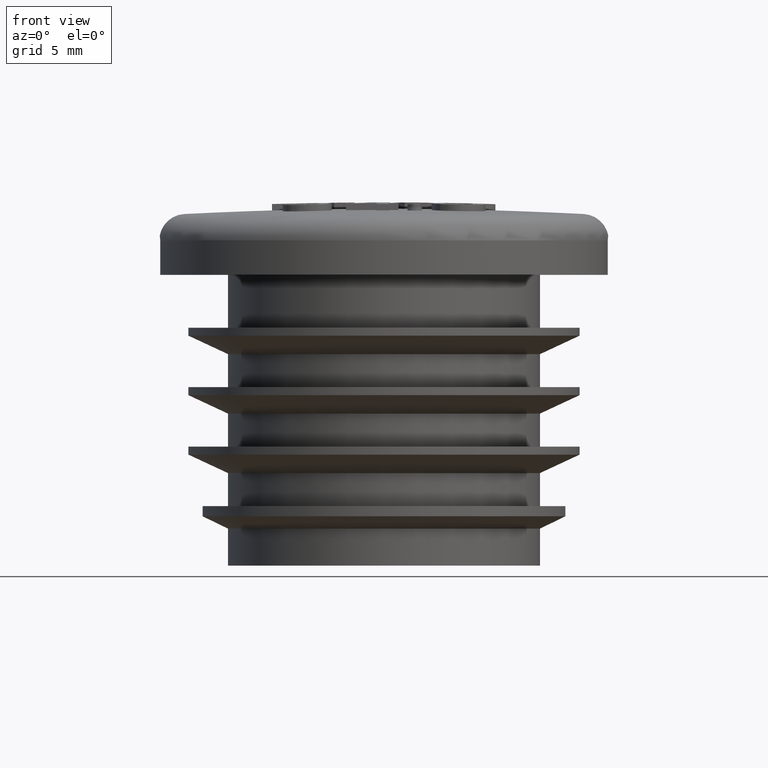
[diagram: clean part render]
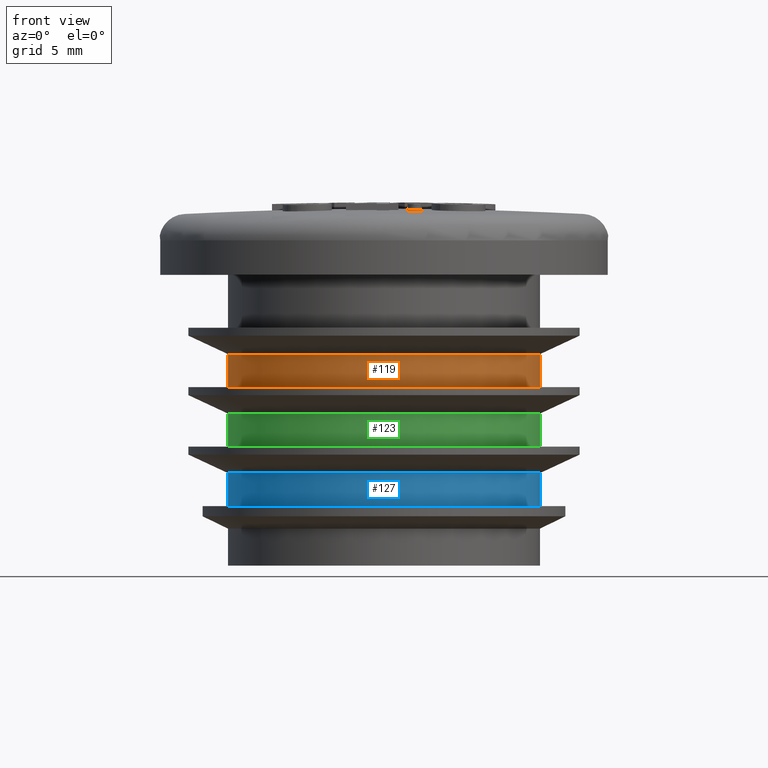
[diagram: same view with three faces highlighted in distinct colors, each labeled with its STEP entity id]
A machine part, front view with three faces highlighted in distinct colors.
Their STEP definitions:

[orange] entity #119 — the highlighted cylindrical surface (bore or boss wall) has radius 11.8 mm, axis along (0, 0, 1).
#119 = ADVANCED_FACE( '', ( #270, #271 ), #272, .T. );
#270 = FACE_OUTER_BOUND( '', #696, .T. );
#271 = FACE_OUTER_BOUND( '', #697, .T. );
#272 = CYLINDRICAL_SURFACE( '', #698, 11.8000000000000 );
#696 = EDGE_LOOP( '', ( #1196 ) );
#697 = EDGE_LOOP( '', ( #1197 ) );
#698 = AXIS2_PLACEMENT_3D( '', #1198, #1199, #1200 );
#1196 = ORIENTED_EDGE( '', *, *, #1672, .F. );
#1197 = ORIENTED_EDGE( '', *, *, #1671, .T. );
#1198 = CARTESIAN_POINT( '', ( 0.000000000000000, 0.000000000000000, 22.0000000000000 ) );
#1199 = DIRECTION( '', ( 0.000000000000000, 6.12303176911189E-017, 1.00000000000000 ) );
#1200 = DIRECTION( '', ( 0.000000000000000, 1.00000000000000, -6.12303176911189E-017 ) );
#1671 = EDGE_CURVE( '', #1940, #1940, #1941, .T. );
#1672 = EDGE_CURVE( '', #1942, #1942, #1943, .T. );
#1940 = VERTEX_POINT( '', #2901 );
#1941 = CIRCLE( '', #2902, 11.8000000000000 );
#1942 = VERTEX_POINT( '', #2903 );
#1943 = CIRCLE( '', #2904, 11.8000000000000 );
#2901 = CARTESIAN_POINT( '', ( 0.000000000000000, 11.8000000000000, 16.0000000000000 ) );
#2902 = AXIS2_PLACEMENT_3D( '', #3383, #3384, #3385 );
#2903 = CARTESIAN_POINT( '', ( 0.000000000000000, 11.8000000000000, 13.5000000000000 ) );
#2904 = AXIS2_PLACEMENT_3D( '', #3386, #3387, #3388 );
#3383 = CARTESIAN_POINT( '', ( 0.000000000000000, -3.67381906146713E-016, 16.0000000000000 ) );
#3384 = DIRECTION( '', ( 0.000000000000000, -6.12303176911189E-017, -1.00000000000000 ) );
#3385 = DIRECTION( '', ( 0.000000000000000, 1.00000000000000, -6.12303176911189E-017 ) );
#3386 = CARTESIAN_POINT( '', ( 0.000000000000000, -5.20457700374511E-016, 13.5000000000000 ) );
#3387 = DIRECTION( '', ( 0.000000000000000, -6.12303176911189E-017, -1.00000000000000 ) );
#3388 = DIRECTION( '', ( 0.000000000000000, 1.00000000000000, -6.12303176911189E-017 ) );

[blue] entity #127 — the highlighted cylindrical surface (bore or boss wall) has radius 11.8 mm, axis along (0, 0, 1).
#127 = ADVANCED_FACE( '', ( #294, #295 ), #296, .T. );
#294 = FACE_OUTER_BOUND( '', #720, .T. );
#295 = FACE_OUTER_BOUND( '', #721, .T. );
#296 = CYLINDRICAL_SURFACE( '', #722, 11.8000000000000 );
#720 = EDGE_LOOP( '', ( #1236 ) );
#721 = EDGE_LOOP( '', ( #1237 ) );
#722 = AXIS2_PLACEMENT_3D( '', #1238, #1239, #1240 );
#1236 = ORIENTED_EDGE( '', *, *, #1680, .F. );
#1237 = ORIENTED_EDGE( '', *, *, #1679, .T. );
#1238 = CARTESIAN_POINT( '', ( 0.000000000000000, 0.000000000000000, 22.0000000000000 ) );
#1239 = DIRECTION( '', ( 0.000000000000000, 6.12303176911189E-017, 1.00000000000000 ) );
#1240 = DIRECTION( '', ( 0.000000000000000, 1.00000000000000, -6.12303176911189E-017 ) );
#1679 = EDGE_CURVE( '', #1956, #1956, #1957, .T. );
#1680 = EDGE_CURVE( '', #1958, #1958, #1959, .T. );
#1956 = VERTEX_POINT( '', #2917 );
#1957 = CIRCLE( '', #2918, 11.8000000000000 );
#1958 = VERTEX_POINT( '', #2919 );
#1959 = CIRCLE( '', #2920, 11.8000000000000 );
#2917 = CARTESIAN_POINT( '', ( 0.000000000000000, 11.8000000000000, 7.00000000000001 ) );
#2918 = AXIS2_PLACEMENT_3D( '', #3407, #3408, #3409 );
#2919 = CARTESIAN_POINT( '', ( 0.000000000000000, 11.8000000000000, 4.49999999999999 ) );
#2920 = AXIS2_PLACEMENT_3D( '', #3410, #3411, #3412 );
#3407 = CARTESIAN_POINT( '', ( 0.000000000000000, -9.18454765366782E-016, 7.00000000000001 ) );
#3408 = DIRECTION( '', ( 0.000000000000000, -6.12303176911189E-017, -1.00000000000000 ) );
#3409 = DIRECTION( '', ( 0.000000000000000, 1.00000000000000, -6.12303176911189E-017 ) );
#3410 = CARTESIAN_POINT( '', ( 0.000000000000000, -1.07153055959458E-015, 4.49999999999999 ) );
#3411 = DIRECTION( '', ( 0.000000000000000, -6.12303176911189E-017, -1.00000000000000 ) );
#3412 = DIRECTION( '', ( 0.000000000000000, 1.00000000000000, -6.12303176911189E-017 ) );

[green] entity #123 — the highlighted cylindrical surface (bore or boss wall) has radius 11.8 mm, axis along (0, 0, 1).
#123 = ADVANCED_FACE( '', ( #282, #283 ), #284, .T. );
#282 = FACE_OUTER_BOUND( '', #708, .T. );
#283 = FACE_OUTER_BOUND( '', #709, .T. );
#284 = CYLINDRICAL_SURFACE( '', #710, 11.8000000000000 );
#708 = EDGE_LOOP( '', ( #1216 ) );
#709 = EDGE_LOOP( '', ( #1217 ) );
#710 = AXIS2_PLACEMENT_3D( '', #1218, #1219, #1220 );
#1216 = ORIENTED_EDGE( '', *, *, #1676, .F. );
#1217 = ORIENTED_EDGE( '', *, *, #1675, .T. );
#1218 = CARTESIAN_POINT( '', ( 0.000000000000000, 0.000000000000000, 22.0000000000000 ) );
#1219 = DIRECTION( '', ( 0.000000000000000, 6.12303176911189E-017, 1.00000000000000 ) );
#1220 = DIRECTION( '', ( 0.000000000000000, 1.00000000000000, -6.12303176911189E-017 ) );
#1675 = EDGE_CURVE( '', #1948, #1948, #1949, .T. );
#1676 = EDGE_CURVE( '', #1950, #1950, #1951, .T. );
#1948 = VERTEX_POINT( '', #2909 );
#1949 = CIRCLE( '', #2910, 11.8000000000000 );
#1950 = VERTEX_POINT( '', #2911 );
#1951 = CIRCLE( '', #2912, 11.8000000000000 );
#2909 = CARTESIAN_POINT( '', ( 0.000000000000000, 11.8000000000000, 11.5000000000000 ) );
#2910 = AXIS2_PLACEMENT_3D( '', #3395, #3396, #3397 );
#2911 = CARTESIAN_POINT( '', ( 0.000000000000000, 11.8000000000000, 9.00000000000000 ) );
#2912 = AXIS2_PLACEMENT_3D( '', #3398, #3399, #3400 );
#3395 = CARTESIAN_POINT( '', ( 0.000000000000000, -6.42918335756747E-016, 11.5000000000000 ) );
#3396 = DIRECTION( '', ( 0.000000000000000, -6.12303176911189E-017, -1.00000000000000 ) );
#3397 = DIRECTION( '', ( 0.000000000000000, 1.00000000000000, -6.12303176911189E-017 ) );
#3398 = CARTESIAN_POINT( '', ( 0.000000000000000, -7.95994129984545E-016, 9.00000000000000 ) );
#3399 = DIRECTION( '', ( 0.000000000000000, -6.12303176911189E-017, -1.00000000000000 ) );
#3400 = DIRECTION( '', ( 0.000000000000000, 1.00000000000000, -6.12303176911189E-017 ) );